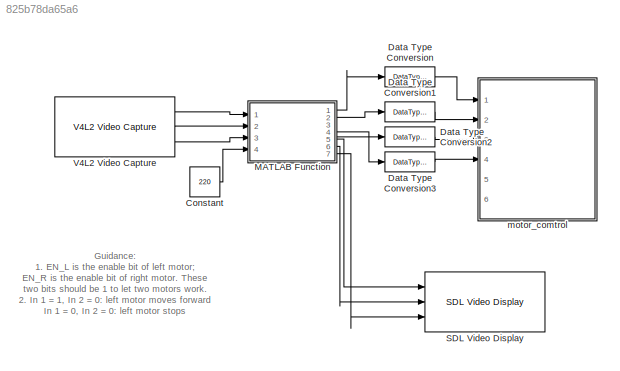
MODEL slx_825b78da65a6
KIND model
BLOCK [Constant] Constant
  Value = 220
BLOCK [DataTypeConversion] Data Type Conversion
  Commented = on
  OutDataTypeStr = boolean
  RndMeth = Floor
  SaturateOnIntegerOverflow = off
BLOCK [DataTypeConversion] Data Type Conversion1
  Commented = on
  OutDataTypeStr = boolean
  RndMeth = Floor
  SaturateOnIntegerOverflow = off
BLOCK [DataTypeConversion] Data Type Conversion2
  Commented = on
  OutDataTypeStr = boolean
  RndMeth = Floor
  SaturateOnIntegerOverflow = off
BLOCK [DataTypeConversion] Data Type Conversion3
  Commented = on
  OutDataTypeStr = boolean
  RndMeth = Floor
  SaturateOnIntegerOverflow = off
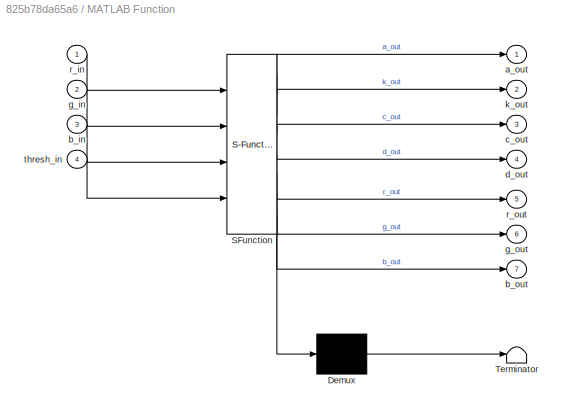
BLOCK [SubSystem] MATLAB Function
  ErrorFcn = Stateflow.Translate.translate
  FunctionWithSeparateData = off
  MaskHideContents = off
  MinAlgLoopOccurrences = off
  Opaque = off
  PermitHierarchicalResolution = ExplicitOnly
  Ports = [4, 7]
  PropExecContextOutsideSubsystem = off
  RTWSystemCode = Auto
  RequestExecContextInheritance = off
  SFBlockType = MATLAB Function
  TreatAsAtomicUnit = on
BLOCK [Demux] MATLAB Function/ Demux 
  Outputs = 1
  Ports = [1, 1]
BLOCK [S-Function] MATLAB Function/ SFunction 
  EnableBusSupport = on
  FunctionName = sf_sfun
  PortCounts = [4 8]
  Ports = [4, 8]
  Tag = Stateflow S-Function lanedetection 2
BLOCK [Terminator] MATLAB Function/ Terminator 
BLOCK [Outport] MATLAB Function/a_out
  IconDisplay = Port number
BLOCK [Inport] MATLAB Function/b_in
  IconDisplay = Port number
  Port = 3
BLOCK [Outport] MATLAB Function/b_out
  IconDisplay = Port number
  Port = 7
BLOCK [Outport] MATLAB Function/c_out
  IconDisplay = Port number
  Port = 3
BLOCK [Outport] MATLAB Function/d_out
  IconDisplay = Port number
  Port = 4
BLOCK [Inport] MATLAB Function/g_in
  IconDisplay = Port number
  Port = 2
BLOCK [Outport] MATLAB Function/g_out
  IconDisplay = Port number
  Port = 6
BLOCK [Outport] MATLAB Function/k_out
  IconDisplay = Port number
  Port = 2
BLOCK [Inport] MATLAB Function/r_in
  IconDisplay = Port number
BLOCK [Outport] MATLAB Function/r_out
  IconDisplay = Port number
  Port = 5
BLOCK [Inport] MATLAB Function/thresh_in
  IconDisplay = Port number
  Port = 4
BLOCK [Reference] SDL Video Display  REF=embdlinuxlib/SDL Video Display
  Ports = [3]
  SourceBlock = embdlinuxlib/SDL Video Display
  SourceType = SDL Video Display
  blockPlatform = Raspberry Pi
  pixelFormat = RGB
  pixelOrder = Planar
  rowMajor = on
BLOCK [Reference] V4L2 Video Capture  REF=embdlinuxlib/V4L2 Video Capture
  Ports = [0, 3]
  SourceBlock = embdlinuxlib/V4L2 Video Capture
  SourceType = V4L2 Video Capture
  blockPlatform = Raspberry Pi
  imSize = [640, 480]
  imSizeSelection = 320x240
  m_devName = '/dev/video0'
  pixelFormat = RGB
  pixelOrder = Planar
  roi = [0, 0, 640, 480]
  sampleTime = 1/10
  simOutput = Colorbars
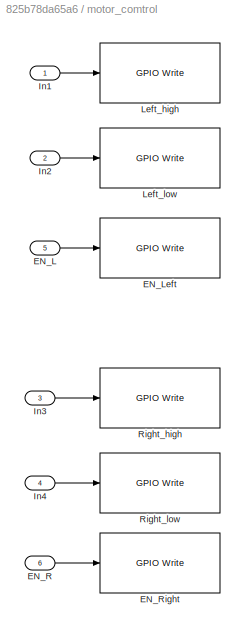
BLOCK [SubSystem] motor_comtrol
  Commented = on
  FunctionWithSeparateData = off
  MaskHideContents = off
  MinAlgLoopOccurrences = off
  Opaque = off
  Ports = [6]
  PropExecContextOutsideSubsystem = off
  RTWSystemCode = Auto
  RequestExecContextInheritance = off
BLOCK [Inport] motor_comtrol/EN_L
  IconDisplay = Port number
  Port = 5
BLOCK [Reference] motor_comtrol/EN_Left  REF=embdlinuxlib/GPIO Write
  Ports = [1]
  SourceBlock = embdlinuxlib/GPIO Write
  SourceType = GPIO Write
  blockPlatform = Raspberry Pi
  board = Model B Rev2
  direction = Output
  gpio = 27
BLOCK [Inport] motor_comtrol/EN_R
  IconDisplay = Port number
  Port = 6
BLOCK [Reference] motor_comtrol/EN_Right  REF=embdlinuxlib/GPIO Write
  Ports = [1]
  SourceBlock = embdlinuxlib/GPIO Write
  SourceType = GPIO Write
  blockPlatform = Raspberry Pi
  board = Model B Rev2
  direction = Output
  gpio = 22
BLOCK [Inport] motor_comtrol/In1
  IconDisplay = Port number
BLOCK [Inport] motor_comtrol/In2
  IconDisplay = Port number
  Port = 2
BLOCK [Inport] motor_comtrol/In3
  IconDisplay = Port number
  Port = 3
BLOCK [Inport] motor_comtrol/In4
  IconDisplay = Port number
  Port = 4
BLOCK [Reference] motor_comtrol/Left_high  REF=embdlinuxlib/GPIO Write
  Ports = [1]
  SourceBlock = embdlinuxlib/GPIO Write
  SourceType = GPIO Write
  blockPlatform = Raspberry Pi
  board = Model B Rev2
  direction = Output
  gpio = 4
BLOCK [Reference] motor_comtrol/Left_low  REF=embdlinuxlib/GPIO Write
  Ports = [1]
  SourceBlock = embdlinuxlib/GPIO Write
  SourceType = GPIO Write
  blockPlatform = Raspberry Pi
  board = Model B Rev2
  direction = Output
  gpio = 17
BLOCK [Reference] motor_comtrol/Right_high  REF=embdlinuxlib/GPIO Write
  Ports = [1]
  SourceBlock = embdlinuxlib/GPIO Write
  SourceType = GPIO Write
  blockPlatform = Raspberry Pi
  board = Model B Rev2
  direction = Output
  gpio = 23
BLOCK [Reference] motor_comtrol/Right_low  REF=embdlinuxlib/GPIO Write
  Ports = [1]
  SourceBlock = embdlinuxlib/GPIO Write
  SourceType = GPIO Write
  blockPlatform = Raspberry Pi
  board = Model B Rev2
  direction = Output
  gpio = 24
ANNOTATION (root): Guidance: 1. EN_L is the enable bit of left motor; EN_R is the enable bit of right motor. These two bits should be 1 to let two motors work. 2. In 1 = 1, In 2 = 0: left motor moves forward In 1 = 0, In 2 = 0: left motor stops In 1 = 0, In 2 = 1: left motor moves backward For right motor is the same thing. 3. Note that all the inputs type should be boolean.
LINE Constant:1 -> MATLAB Function:4
LINE Data Type Conversion1:1 -> motor_comtrol:2
LINE Data Type Conversion2:1 -> motor_comtrol:3
LINE Data Type Conversion3:1 -> motor_comtrol:4
LINE Data Type Conversion:1 -> motor_comtrol:1
LINE MATLAB Function:1 -> Data Type Conversion:1
LINE MATLAB Function:2 -> Data Type Conversion1:1
LINE MATLAB Function:3 -> Data Type Conversion2:1
LINE MATLAB Function:4 -> Data Type Conversion3:1
LINE MATLAB Function:5 -> SDL Video Display:1
LINE MATLAB Function:6 -> SDL Video Display:2
LINE MATLAB Function:7 -> SDL Video Display:3
LINE V4L2 Video Capture:1 -> MATLAB Function:1
LINE V4L2 Video Capture:2 -> MATLAB Function:2
LINE V4L2 Video Capture:3 -> MATLAB Function:3
LINE motor_comtrol/EN_L:1 -> motor_comtrol/EN_Left:1
LINE motor_comtrol/EN_R:1 -> motor_comtrol/EN_Right:1
LINE motor_comtrol/In1:1 -> motor_comtrol/Left_high:1
LINE motor_comtrol/In2:1 -> motor_comtrol/Left_low:1
LINE motor_comtrol/In3:1 -> motor_comtrol/Right_high:1
LINE motor_comtrol/In4:1 -> motor_comtrol/Right_low:1
